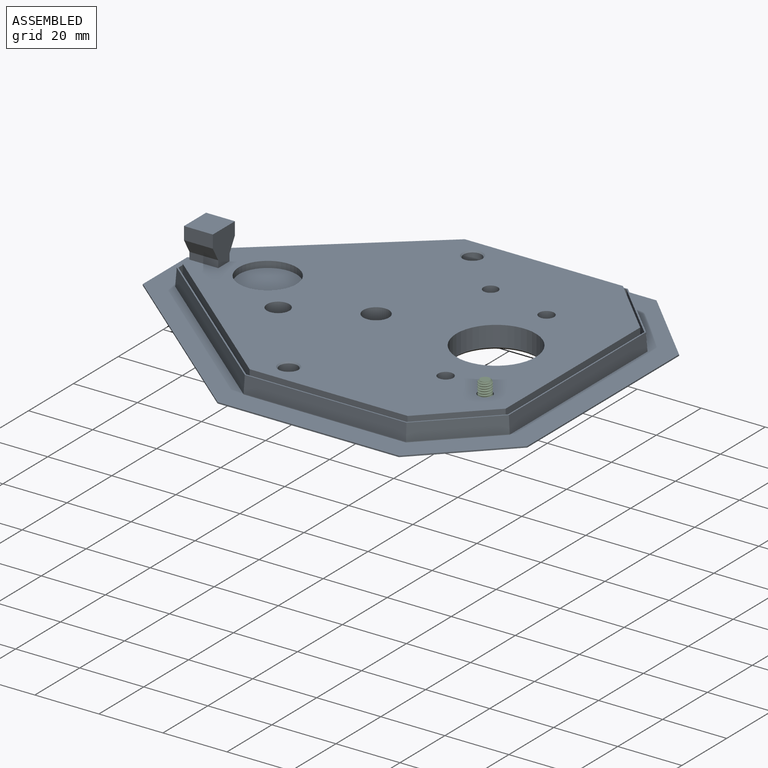
[diagram: assembled view]
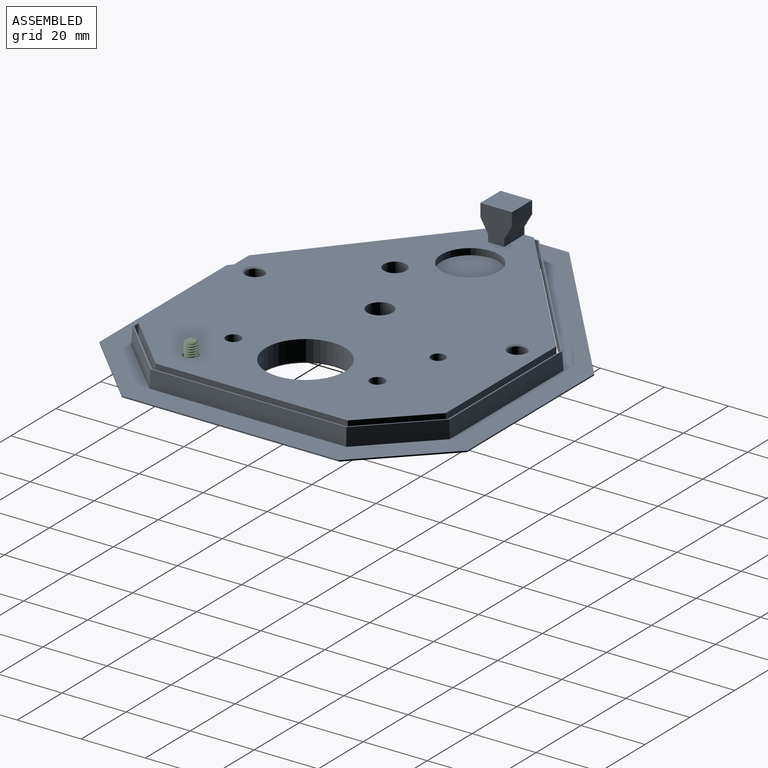
[diagram: assembled view, second angle]
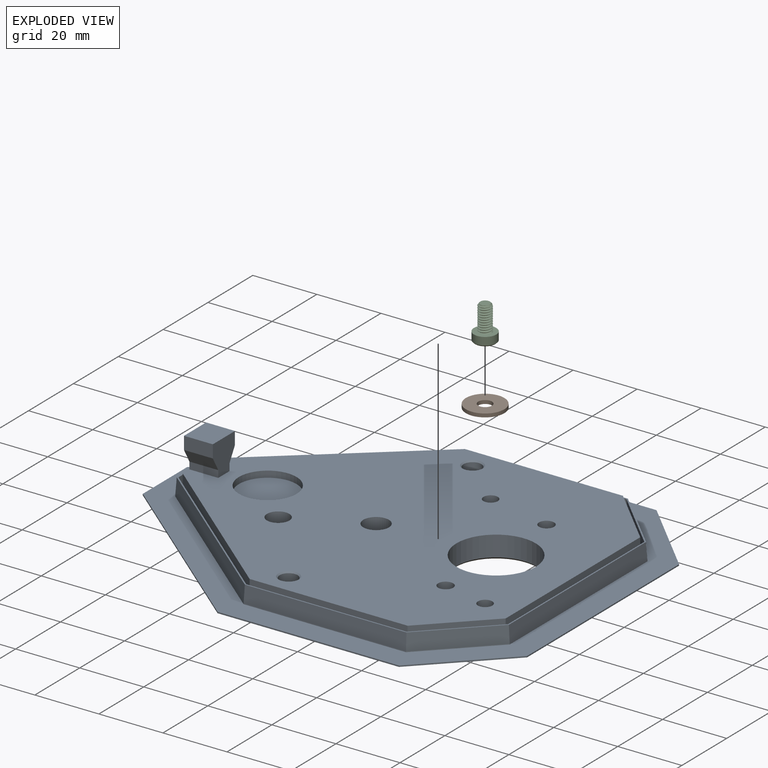
[diagram: exploded view]
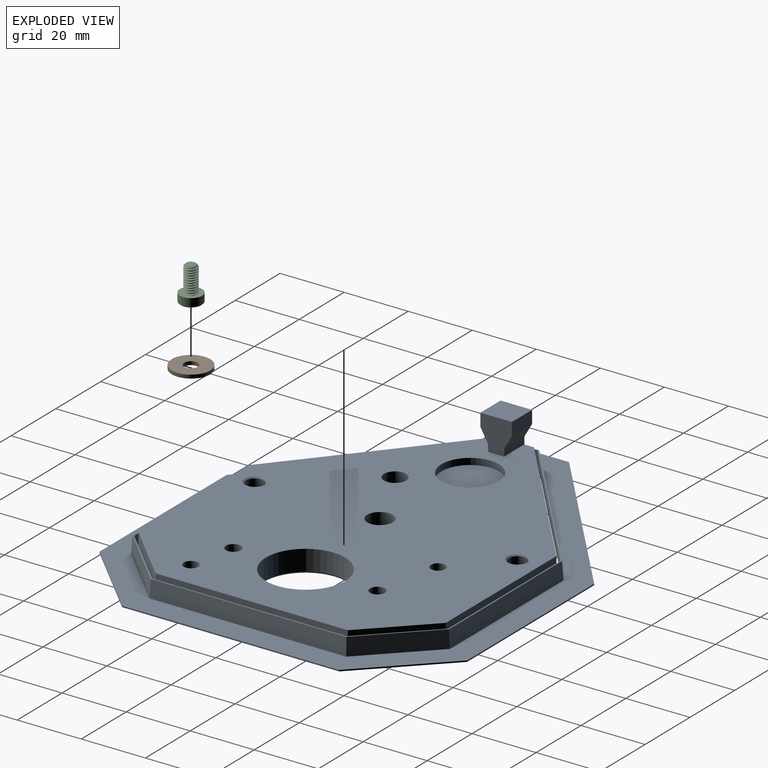
[diagram: exploded view, second angle]
ASSEMBLY  parts=3 mates=2
PART A: 95 faces, bbox 136.8x114.8x17.4 mm
  f0: plane 11x0.2mm, normal (-0.71,0,-0.71), area 3.1mm2, adj f8,f40,f43,f94
  f1: cylinder r=2.25mm len=4.5mm, axis (0,0,-1), area 36.8mm2, adj f3,f58
  f2: cylinder r=2.25mm len=4.5mm, axis (0,0,-1), area 36.8mm2, adj f3,f65
  f3: plane 118x96mm, normal (0,0,1), area 7849.9mm2, adj f1,f2,f5,f6,f7,f8,f9,f10
  f4: plane 136.8x114.8mm, normal (0,0,-1), area 10723.1mm2, adj f36,f37,f38,f39,f40,f41,f42,f43
  f5: plane 60x6.4mm, normal (1,0,0), area 384mm2, adj f3,f21,f22,f42
  f6: plane 49.35x6.4mm, normal (0,1,0), area 315.9mm2, adj f3,f7,f22,f39
  f7: plane 50.65x42.5mm, normal (-0.64,0.77,0), area 423.1mm2, adj f3,f6,f8,f40
  f8: plane 16.8x11mm, normal (-1,0,0), area 152mm2, adj f0,f3,f7,f9,f24,f25,f27,f28
  f9: plane 50.65x42.5mm, normal (-0.64,-0.77,0), area 423.1mm2, adj f3,f8,f10,f43
  f10: plane 49.35x6.4mm, normal (0,-1,0), area 315.9mm2, adj f3,f9,f21,f45
  f11: cylinder r=12.4mm len=24.79mm, axis (0,0,-1), area 498.4mm2, adj f3,f51
  f12: cylinder r=2.35mm len=6.4mm, axis (0,0,-1), area 94.5mm2, adj f3,f49
  f13: cylinder r=2.35mm len=6.4mm, axis (0,0,-1), area 94.5mm2, adj f3,f50
  f14: cylinder r=9mm len=18mm, axis (0,0,1), area 113.1mm2, adj f3,f15
  f15: plane 18x18mm, normal (0,0,1), area 254.5mm2, adj f14
  f16: cylinder r=4mm len=8mm, axis (0,0,-1), area 160.8mm2, adj f3,f48
  f17: cylinder r=2.8mm len=6mm, axis (0,0,-1), area 105.6mm2, adj f18,f47
  f18: cone r=3.2mm half-angle=45deg, axis (0,0,1), area 10.7mm2, adj f3,f17
  f19: cylinder r=2.8mm len=6mm, axis (0,0,-1), area 105.6mm2, adj f20,f46
  f20: cone r=2.8mm half-angle=45deg, axis (0,0,1), area 10.7mm2, adj f3,f19
  f21: plane 18x18mm, normal (0.71,-0.71,0), area 162.9mm2, adj f3,f5,f10,f44
  f22: plane 18x18mm, normal (0.71,0.71,0), area 162.9mm2, adj f3,f5,f6,f41
  f23: cylinder r=3.5mm len=7mm, axis (0,0,-1), area 140.7mm2, adj f3,f38
  f24: plane 9x2.2mm, normal (0,1,0), area 19.8mm2, adj f3,f8,f26,f27
  f25: plane 9x2.2mm, normal (0,-1,0), area 19.8mm2, adj f3,f8,f26,f28
  f26: plane 10.4x9.85mm, normal (1,0,0), area 81.6mm2, adj f3,f24,f25,f27,f28,f29,f30,f31
  f27: plane 9x4.2mm, normal (0,0.87,-0.5), area 43.6mm2, adj f8,f24,f26,f29
  f28: plane 9x4.2mm, normal (0,-0.87,-0.5), area 43.6mm2, adj f8,f25,f26,f30
  f29: plane 9x4mm, normal (0,1,0), area 36mm2, adj f8,f26,f27,f31
  f30: plane 9x4mm, normal (0,-1,0), area 36mm2, adj f8,f26,f28,f31
  f31: plane 9.85x9mm, normal (0,0,1), area 88.6mm2, adj f8,f26,f29,f30
  f32: cylinder r=6.3mm len=12.6mm, axis (0,0,-1), area 142.5mm2, adj f33,f36
  f33: plane 12.6x12.6mm, normal (0,0,-1), area 108.2mm2, adj f32,f64
  f34: cylinder r=6.3mm len=12.6mm, axis (0,0,-1), area 142.5mm2, adj f35,f37
  f35: plane 12.6x12.6mm, normal (0,0,-1), area 108.2mm2, adj f34,f57
  f36: cone r=6.3mm half-angle=45deg, axis (0,0,-1), area 35.2mm2, adj f4,f32
  f37: cone r=6.3mm half-angle=45deg, axis (0,0,-1), area 35.2mm2, adj f4,f34
  f38: cone r=4.1mm half-angle=45deg, axis (0,0,-1), area 20.3mm2, adj f4,f23
  f39: plane 49.35x0.6mm, normal (0,0.71,-0.71), area 41.7mm2, adj f4,f6,f40,f41
  f40: plane 50.87x42.6mm, normal (-0.45,0.54,-0.71), area 52.2mm2, adj f0,f4,f7,f39,f66,f94
  f41: plane 18.25x18.25mm, normal (0.5,0.5,-0.71), area 21.4mm2, adj f4,f22,f39,f42
  f42: plane 60x0.6mm, normal (0.71,0,-0.71), area 50.7mm2, adj f4,f5,f41,f44
  f43: plane 50.87x42.6mm, normal (-0.45,-0.54,-0.71), area 51.5mm2, adj f0,f4,f9,f45,f93,f94
  f44: plane 18.25x18.25mm, normal (0.5,-0.5,-0.71), area 21.4mm2, adj f4,f21,f42,f45
  f45: plane 49.35x0.6mm, normal (0,-0.71,-0.71), area 41.7mm2, adj f4,f10,f43,f44
  f46: cone r=2.8mm half-angle=45deg, axis (0,0,-1), area 16.5mm2, adj f4,f19
  f47: cone r=3.4mm half-angle=45deg, axis (0,0,-1), area 16.5mm2, adj f4,f17
  f48: cone r=4.6mm half-angle=45deg, axis (0,0,-1), area 22.9mm2, adj f4,f16
  f49: cone r=2.35mm half-angle=45deg, axis (0,0,-1), area 14.1mm2, adj f4,f12
  f50: cone r=2.95mm half-angle=45deg, axis (0,0,-1), area 14.1mm2, adj f4,f13
  f51: cone r=13mm half-angle=45deg, axis (0,0,-1), area 67.7mm2, adj f4,f11
  f52: cone r=1.18mm half-angle=44.5deg, axis (0,0,-1), area 6.2mm2, adj f53
  f53: cylinder r=1.18mm len=2.36mm, axis (0,0,1), area 5.8mm2, adj f52,f54
  f54: cone r=0.23mm half-angle=23deg, axis (0,0,1), area 10.7mm2, adj f53,f55
  f55: plane 6.87x6.87mm, normal (0,0,-1), area 36.8mm2, adj f54,f56
  f56: cone r=2.29mm half-angle=27.8deg, axis (0,0,-1), area 44.1mm2, adj f55,f57
  f57: cylinder r=2.29mm len=4.58mm, axis (0,0,1), area 29.2mm2, adj f35,f56
  f58: plane 4.5x4.5mm, normal (0,0,1), area 15.9mm2, adj f1
  f59: cone r=1.18mm half-angle=44.5deg, axis (0,0,-1), area 6.2mm2, adj f60
  f60: cylinder r=1.18mm len=2.36mm, axis (0,0,1), area 5.8mm2, adj f59,f61
  f61: cone r=0.23mm half-angle=23deg, axis (0,0,1), area 10.7mm2, adj f60,f62
  f62: plane 6.87x6.87mm, normal (0,0,-1), area 36.8mm2, adj f61,f63
  f63: cone r=2.29mm half-angle=27.8deg, axis (0,0,-1), area 44.1mm2, adj f62,f64
  f64: cylinder r=2.29mm len=4.58mm, axis (0,0,1), area 29.2mm2, adj f33,f63
  f65: plane 4.5x4.5mm, normal (0,0,1), area 15.9mm2, adj f2
  f66: cylinder r=9.95mm len=3.52mm, axis (0,0,-1), area 1.3mm2, adj f4,f40,f81,f94
  f67: plane 12.28x5.4mm, normal (1,0,-0.07), area 65.5mm2, adj f68,f81,f82,f94
  f68: plane 120.79x98.79mm, normal (0,0,1), area 144.7mm2, adj f67,f77,f78,f79,f80,f81,f82,f83
  f69: plane 23.51x23.51mm, normal (0.71,0.71,0), area 13.3mm2, adj f4,f70,f76,f92
  f70: plane 56.67x0.4mm, normal (0,1,0), area 22.7mm2, adj f4,f69,f71,f92
  f71: plane 56.63x47.51mm, normal (-0.64,0.77,0), area 29.6mm2, adj f4,f70,f72,f92
  f72: plane 19.77x0.4mm, normal (-1,0,0), area 7.9mm2, adj f4,f71,f73,f92
  f73: plane 56.63x47.51mm, normal (-0.64,-0.77,0), area 29.6mm2, adj f4,f72,f74,f92
  f74: plane 56.67x0.4mm, normal (0,-1,0), area 22.7mm2, adj f4,f73,f75,f92
  f75: plane 23.51x23.51mm, normal (0.71,-0.71,0), area 13.3mm2, adj f4,f74,f76,f92
  f76: plane 67.79x0.4mm, normal (1,0,0), area 27.1mm2, adj f4,f69,f75,f92
  f77: plane 18.99x18.99mm, normal (-0.71,0.71,-0.07), area 153.8mm2, adj f4,f68,f78,f83
  f78: plane 61.16x5.8mm, normal (-1,0,-0.07), area 354.6mm2, adj f4,f68,f77,f79
  f79: plane 18.99x18.99mm, normal (-0.71,-0.71,-0.07), area 153.8mm2, adj f4,f68,f78,f80
  f80: plane 50.44x5.8mm, normal (0,-1,-0.07), area 292.4mm2, adj f4,f68,f79,f81
  f81: plane 51.66x43.44mm, normal (0.64,-0.76,-0.07), area 388.3mm2, adj f4,f66,f67,f68,f80,f94
  f82: plane 51.66x43.43mm, normal (0.64,0.76,-0.07), area 387.6mm2, adj f4,f67,f68,f83,f93,f94
  f83: plane 50.44x5.8mm, normal (0,1,-0.07), area 292.4mm2, adj f4,f68,f77,f82
  f84: plane 19.2x19.2mm, normal (0.71,-0.71,0.07), area 144.9mm2, adj f68,f85,f91,f92
  f85: plane 61.47x5.4mm, normal (1,0,0.07), area 331.9mm2, adj f68,f84,f86,f92
  f86: plane 19.2x19.2mm, normal (0.71,0.71,0.07), area 144.9mm2, adj f68,f85,f87,f92
  f87: plane 50.73x5.4mm, normal (0,1,0.07), area 273.8mm2, adj f68,f86,f88,f92
  f88: plane 51.91x43.62mm, normal (-0.64,0.76,0.07), area 365mm2, adj f68,f87,f89,f92
  f89: plane 12.66x5.4mm, normal (-1,0,0.07), area 67.6mm2, adj f68,f88,f90,f92
  f90: plane 51.91x43.62mm, normal (-0.64,-0.76,0.07), area 365mm2, adj f68,f89,f91,f92
  f91: plane 50.73x5.4mm, normal (0,-1,0.07), area 273.8mm2, adj f68,f84,f90,f92
  f92: plane 136.8x114.8mm, normal (0,0,1), area 2973.9mm2, adj f69,f70,f71,f72,f73,f74,f75,f76
  f93: cylinder r=9.95mm len=3.08mm, axis (0,0,-1), area 1.1mm2, adj f4,f43,f82,f94
  f94: plane 19.9x7.39mm, normal (0,0,1), area 38.3mm2, adj f0,f40,f43,f66,f67,f81,f82,f93
PART B: 4 faces, bbox 12x12x1.1 mm
  f0: cylinder r=6mm len=12mm, axis (0,0,-1), area 41.5mm2, adj f1,f2
  f1: plane 12x12mm, normal (0,0,-1), area 98.6mm2, adj f0,f3
  f2: plane 12x12mm, normal (0,0,1), area 98.6mm2, adj f0,f3
  f3: cylinder r=2.15mm len=4.3mm, axis (0,0,-1), area 14.9mm2, adj f1,f2
PART C: 23 faces, bbox 11.5x7.5x7.5 mm
  f0: plane 2.95x2.95mm, normal (1,0,0), area 6.8mm2, adj f2
  f1: plane 2.89x2.5mm, normal (-1,0,0), area 5.4mm2, adj f3,f4,f5,f6,f7,f8
  f2: cone r=1.47mm half-angle=45deg, axis (-1,0,0), area 4.4mm2, adj f0,f9,f10,f11,f12
  f3: plane 2.97x1.8mm, normal (0,0.87,-0.5), area 3.3mm2, adj f1,f4,f8,f13
  f4: plane 2.97x1.8mm, normal (0,0.87,0.5), area 3.3mm2, adj f1,f3,f5,f14
  f5: plane 2.97x1.99mm, normal (0,0,1), area 3.3mm2, adj f1,f4,f6,f15
  f6: plane 2.97x1.8mm, normal (0,-0.87,0.5), area 3.3mm2, adj f1,f5,f7,f16
  f7: plane 2.97x1.8mm, normal (0,-0.87,-0.5), area 3.3mm2, adj f1,f6,f8,f17
  f8: plane 2.97x1.99mm, normal (0,0,-1), area 3.3mm2, adj f1,f3,f7,f18
  f9: bspline ~8.45x4mm, area 64.4mm2, adj f2,f10,f12,f19
  f10: cylinder r=2mm len=7.48mm, axis (1,0,0), area 6.9mm2, adj f2,f9,f11,f19
  f11: bspline ~8.27x4.2mm, area 64.4mm2, adj f2,f10,f12,f19
  f12: cylinder r=1.55mm len=7.93mm, axis (1,0,0), area 15.5mm2, adj f2,f9,f11,f19
  f13: cone r=1.44mm half-angle=45deg, axis (-1,0,0), area 0mm2, adj f3,f20
  f14: cone r=1.44mm half-angle=45deg, axis (-1,0,0), area 0mm2, adj f4,f20
  f15: cone r=1.44mm half-angle=45deg, axis (-1,0,0), area 0mm2, adj f5,f20
  f16: cone r=1.44mm half-angle=45deg, axis (-1,0,0), area 0mm2, adj f6,f20
  f17: cone r=1.44mm half-angle=45deg, axis (-1,0,0), area 0mm2, adj f7,f20
  f18: cone r=1.44mm half-angle=45deg, axis (-1,0,0), area 0mm2, adj f8,f20
  f19: plane 7.28x7.28mm, normal (1,0,0), area 28.5mm2, adj f9,f10,f11,f12,f21
  f20: plane 6.3x6.3mm, normal (-1,0,0), area 24.6mm2, adj f13,f14,f15,f16,f17,f18,f22
  f21: cylinder r=3.5mm len=7mm, axis (1,0,0), area 53.9mm2, adj f19,f22
  f22: cone r=3.5mm half-angle=45deg, axis (1,0,0), area 10.3mm2, adj f20,f21
PLACE A t=(0,0,-0.3)mm
PLACE B t=(14.5,-25.6,2.8)mm
PLACE C rot(axis=(-0.58,-0.58,-0.58),120deg) t=(14.5,-25.6,6.8)mm
MATE revolute C.f21 <-> B.f0  axis (0,0,1) through (14.5,-25.6,2.8)mm
MATE revolute B.f0 <-> A.f1  axis (0,0,1) through (14.5,-25.6,3.9)mm
